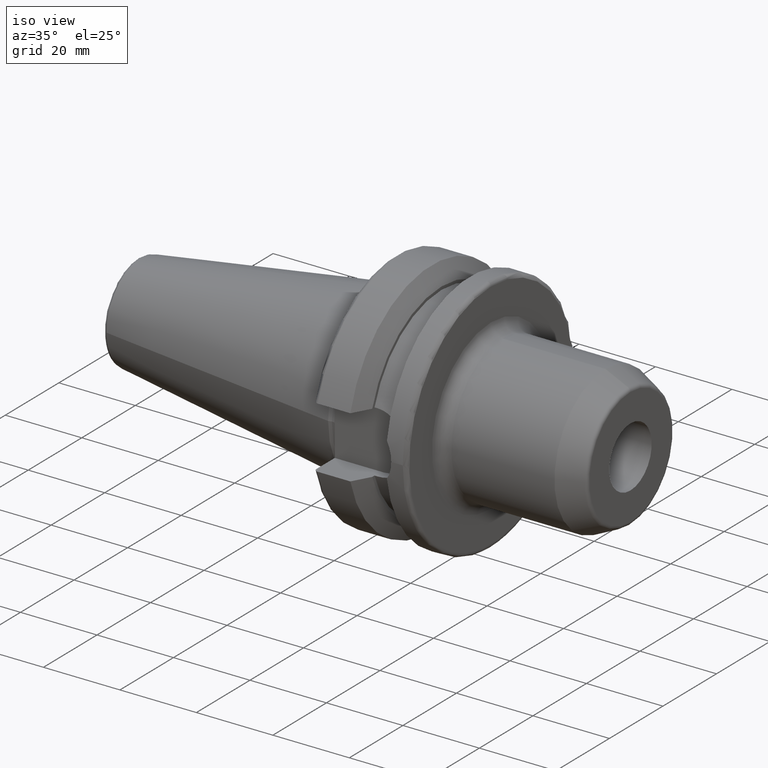
[diagram: clean part render]
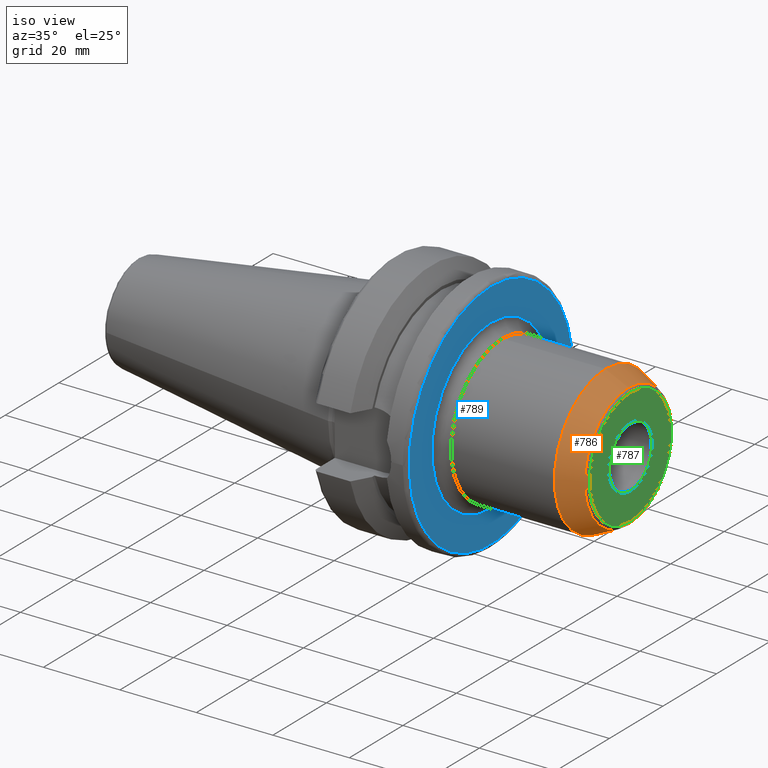
[diagram: same view with three faces highlighted in distinct colors, each labeled with its STEP entity id]
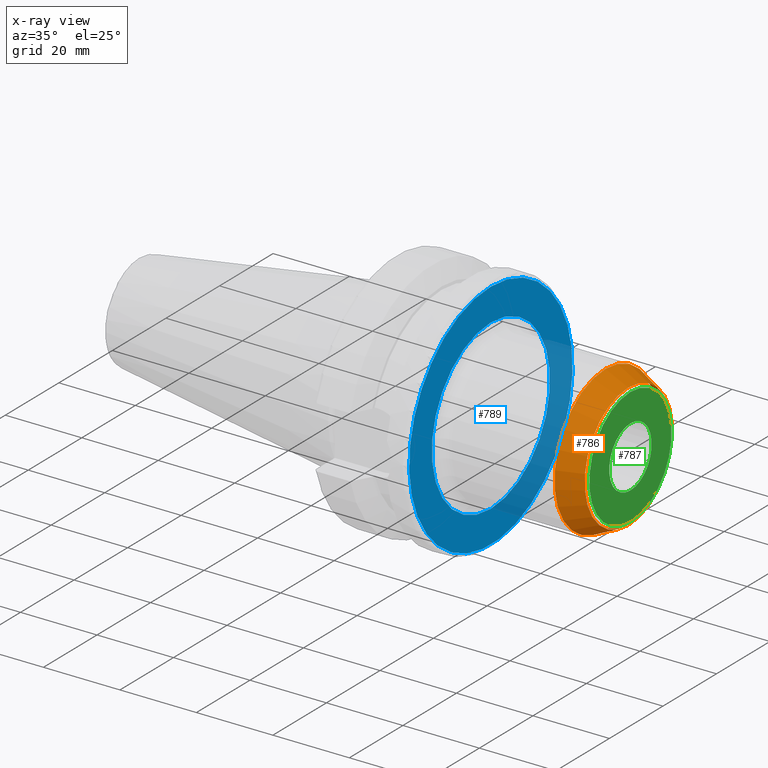
[diagram: x-ray of the same camera — body ghosted, the three highlighted faces saturated]
A machine part, iso view with three faces highlighted in distinct colors.
The next image is the same camera in x-ray (body ghosted, the three faces saturated) — at least one of them is partly hidden behind the body in this view.
Their STEP definitions:

[orange] entity #786 — the highlighted conical surface has half-angle 25 deg.
#36=CONICAL_SURFACE('',#863,17.525,0.436332312998581);
#61=CIRCLE('',#856,19.05);
#66=CIRCLE('',#862,16.2692375262292);
#133=FACE_OUTER_BOUND('',#183,.T.);
#183=EDGE_LOOP('',(#560,#561,#562,#563));
#258=LINE('',#1448,#302);
#302=VECTOR('',#980,17.525);
#347=VERTEX_POINT('',#1434);
#351=VERTEX_POINT('',#1444);
#427=EDGE_CURVE('',#347,#347,#61,.T.);
#433=EDGE_CURVE('',#351,#351,#66,.T.);
#434=EDGE_CURVE('',#351,#347,#258,.T.);
#560=ORIENTED_EDGE('',*,*,#433,.F.);
#561=ORIENTED_EDGE('',*,*,#434,.T.);
#562=ORIENTED_EDGE('',*,*,#427,.T.);
#563=ORIENTED_EDGE('',*,*,#434,.F.);
#786=ADVANCED_FACE('',(#133),#36,.T.);
#856=AXIS2_PLACEMENT_3D('',#1435,#963,#964);
#862=AXIS2_PLACEMENT_3D('',#1446,#976,#977);
#863=AXIS2_PLACEMENT_3D('',#1447,#978,#979);
#963=DIRECTION('center_axis',(1.,0.,0.));
#964=DIRECTION('ref_axis',(0.,0.,-1.));
#976=DIRECTION('center_axis',(1.,0.,0.));
#977=DIRECTION('ref_axis',(0.,0.,1.));
#978=DIRECTION('center_axis',(-1.,0.,0.));
#979=DIRECTION('ref_axis',(0.,0.,-1.));
#980=DIRECTION('',(-0.90630778703665,-5.17558101501965E-17,0.422618261740699));
#1434=CARTESIAN_POINT('',(56.9592538924458,-2.33295215237571E-15,19.05));
#1435=CARTESIAN_POINT('Origin',(56.9592538924458,0.,0.));
#1444=CARTESIAN_POINT('',(62.9226182617407,-1.99240696610645E-15,16.2692375262292));
#1446=CARTESIAN_POINT('Origin',(62.9226182617407,-1.99240696610645E-15,
0.));
#1447=CARTESIAN_POINT('Origin',(60.2296269462229,0.,0.));
#1448=CARTESIAN_POINT('',(60.2296269462229,-2.14619351550574E-15,17.525));

[blue] entity #789 — the highlighted planar face has unit normal (1, 0, 0).
#20=PLANE('',#869);
#54=FACE_BOUND('',#188,.T.);
#69=CIRCLE('',#868,22.05);
#70=CIRCLE('',#870,30.5);
#136=FACE_OUTER_BOUND('',#187,.T.);
#187=EDGE_LOOP('',(#571));
#188=EDGE_LOOP('',(#572));
#353=VERTEX_POINT('',#1453);
#354=VERTEX_POINT('',#1457);
#437=EDGE_CURVE('',#353,#353,#69,.T.);
#438=EDGE_CURVE('',#354,#354,#70,.T.);
#571=ORIENTED_EDGE('',*,*,#438,.T.);
#572=ORIENTED_EDGE('',*,*,#437,.F.);
#789=ADVANCED_FACE('',(#136,#54),#20,.T.);
#868=AXIS2_PLACEMENT_3D('',#1455,#989,#990);
#869=AXIS2_PLACEMENT_3D('',#1456,#991,#992);
#870=AXIS2_PLACEMENT_3D('',#1458,#993,#994);
#989=DIRECTION('center_axis',(1.,0.,0.));
#990=DIRECTION('ref_axis',(0.,-1.22464679914735E-16,1.));
#991=DIRECTION('center_axis',(1.,0.,0.));
#992=DIRECTION('ref_axis',(0.,0.,-1.));
#993=DIRECTION('center_axis',(1.,0.,0.));
#994=DIRECTION('ref_axis',(0.,0.,-1.));
#1453=CARTESIAN_POINT('',(27.,5.40069238423983E-15,-22.05));
#1455=CARTESIAN_POINT('Origin',(27.,0.,0.));
#1456=CARTESIAN_POINT('Origin',(27.,0.,0.));
#1457=CARTESIAN_POINT('',(27.,-3.73517273739943E-15,30.5));
#1458=CARTESIAN_POINT('Origin',(27.,0.,0.));

[green] entity #787 — the highlighted planar face has unit normal (1, 0, 0).
#19=PLANE('',#864);
#53=FACE_BOUND('',#185,.T.);
#64=CIRCLE('',#860,15.3629297391925);
#67=CIRCLE('',#865,7.93749999999999);
#134=FACE_OUTER_BOUND('',#184,.T.);
#184=EDGE_LOOP('',(#564));
#185=EDGE_LOOP('',(#565));
#350=VERTEX_POINT('',#1442);
#352=VERTEX_POINT('',#1450);
#431=EDGE_CURVE('',#350,#350,#64,.T.);
#435=EDGE_CURVE('',#352,#352,#67,.T.);
#564=ORIENTED_EDGE('',*,*,#431,.F.);
#565=ORIENTED_EDGE('',*,*,#435,.T.);
#787=ADVANCED_FACE('',(#134,#53),#19,.T.);
#860=AXIS2_PLACEMENT_3D('',#1443,#972,#973);
#864=AXIS2_PLACEMENT_3D('',#1449,#981,#982);
#865=AXIS2_PLACEMENT_3D('',#1451,#983,#984);
#972=DIRECTION('center_axis',(-1.,0.,0.));
#973=DIRECTION('ref_axis',(0.,1.22464679914735E-16,1.));
#981=DIRECTION('center_axis',(1.,0.,0.));
#982=DIRECTION('ref_axis',(0.,0.,-1.));
#983=DIRECTION('center_axis',(-1.,0.,0.));
#984=DIRECTION('ref_axis',(0.,0.,-1.));
#1442=CARTESIAN_POINT('',(63.5,-1.88141627306278E-15,15.3629297391925));
#1443=CARTESIAN_POINT('Origin',(63.5,0.,0.));
#1449=CARTESIAN_POINT('Origin',(63.5,0.,6.65507257040218E-16));
#1450=CARTESIAN_POINT('',(63.5,9.72063396823211E-16,7.93749999999999));
#1451=CARTESIAN_POINT('Origin',(63.5,0.,0.));